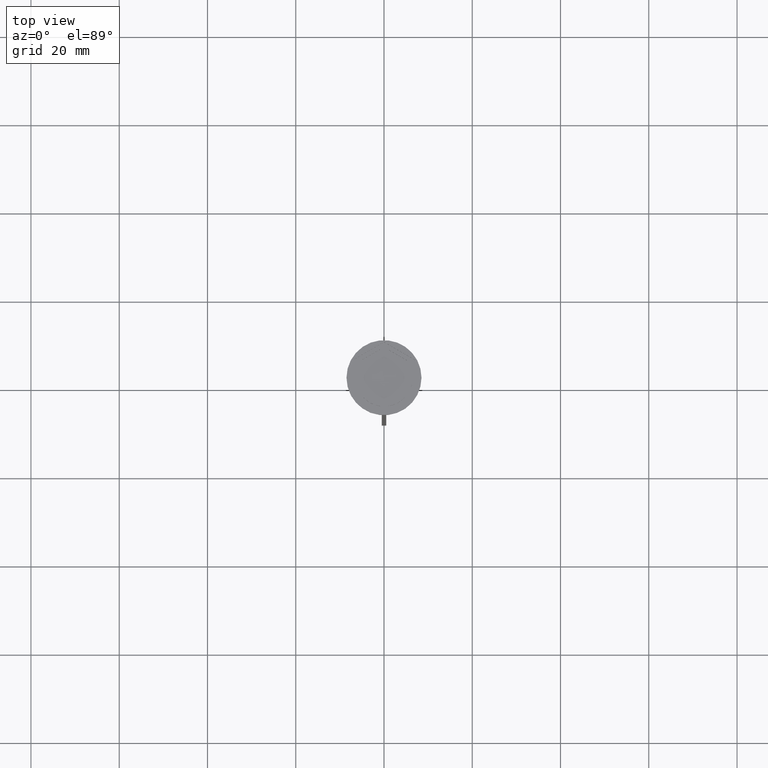
[diagram: clean part render]
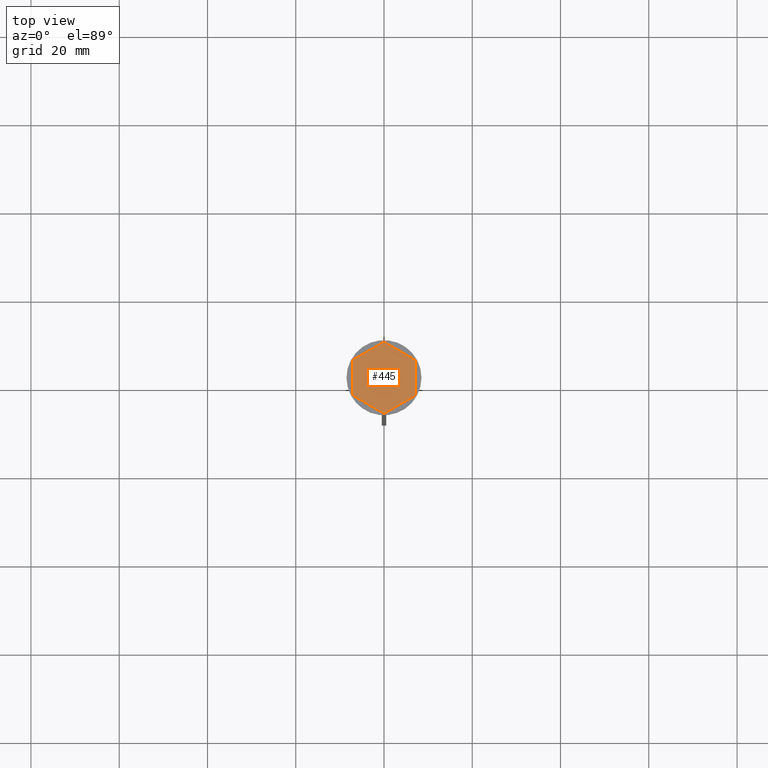
[diagram: same view with one face highlighted and labeled with its STEP entity id]
A machine part, top view. The second image highlights one B-rep face of the part: STEP entity #445.
In plain terms, the highlighted planar face has unit normal (0, 0, 1).
Its self-contained STEP definition (entity closure, byte-faithful):
#5 = AXIS2_PLACEMENT_3D ( 'NONE', #706, #1463, #525 ) ;
#50 = VECTOR ( 'NONE', #2343, 1000.000000000000000 ) ;
#61 = LINE ( 'NONE', #1774, #2305 ) ;
#69 = EDGE_CURVE ( 'NONE', #1689, #1612, #1806, .T. ) ;
#78 = CARTESIAN_POINT ( 'NONE',  ( 5.165063509461097269, -3.946152422706631580, -1.000000000000000888 ) ) ;
#102 = EDGE_CURVE ( 'NONE', #2078, #2310, #2035, .T. ) ;
#109 = LINE ( 'NONE', #1807, #2334 ) ;
#172 = VECTOR ( 'NONE', #1471, 1000.000000000000114 ) ;
#193 = EDGE_LOOP ( 'NONE', ( #1734, #1384 ) ) ;
#213 = CIRCLE ( 'NONE', #2130, 6.500000000000000888 ) ;
#215 = CARTESIAN_POINT ( 'NONE',  ( 0.000000000000000000, 0.000000000000000000, -1.000000000000000000 ) ) ;
#222 = VECTOR ( 'NONE', #2327, 1000.000000000000000 ) ;
#237 = CARTESIAN_POINT ( 'NONE',  ( 7.000000000000000000, -4.041451884327381450, -1.000000000000000000 ) ) ;
#239 = EDGE_CURVE ( 'NONE', #2222, #1227, #1159, .T. ) ;
#281 = ORIENTED_EDGE ( 'NONE', *, *, #1168, .F. ) ;
#291 = CIRCLE ( 'NONE', #766, 6.500000000000000888 ) ;
#323 = CARTESIAN_POINT ( 'NONE',  ( 0.000000000000000000, 0.000000000000000000, -1.000000000000000000 ) ) ;
#337 = VERTEX_POINT ( 'NONE', #78 ) ;
#381 = CIRCLE ( 'NONE', #2344, 6.500000000000000888 ) ;
#385 = CARTESIAN_POINT ( 'NONE',  ( 7.000000000000000888, 4.041451884327382338, -1.000000000000000000 ) ) ;
#445 = ADVANCED_FACE ( 'NONE', ( #1453, #2232, #1628, #671, #2434, #2031, #1853 ), #2244, .T. ) ;
#447 = EDGE_LOOP ( 'NONE', ( #2062, #2264 ) ) ;
#473 = ORIENTED_EDGE ( 'NONE', *, *, #1520, .F. ) ;
#506 = LINE ( 'NONE', #1256, #1403 ) ;
#525 = DIRECTION ( 'NONE',  ( 1.000000000000000000, 0.000000000000000000, -0.000000000000000000 ) ) ;
#526 = EDGE_CURVE ( 'NONE', #867, #2125, #506, .T. ) ;
#561 = LINE ( 'NONE', #1152, #2375 ) ;
#588 = EDGE_CURVE ( 'NONE', #1108, #2068, #561, .T. ) ;
#599 = DIRECTION ( 'NONE',  ( 0.000000000000000000, -1.000000000000000000, 0.000000000000000000 ) ) ;
#602 = ORIENTED_EDGE ( 'NONE', *, *, #1790, .F. ) ;
#619 = VERTEX_POINT ( 'NONE', #1713 ) ;
#653 = EDGE_LOOP ( 'NONE', ( #1965, #281 ) ) ;
#667 = ORIENTED_EDGE ( 'NONE', *, *, #69, .F. ) ;
#671 = FACE_BOUND ( 'NONE', #982, .T. ) ;
#706 = CARTESIAN_POINT ( 'NONE',  ( 0.000000000000000000, 0.000000000000000000, -1.000000000000000000 ) ) ;
#708 = CARTESIAN_POINT ( 'NONE',  ( 5.999999999999999112, -3.464101615137755719, -1.000000000000000888 ) ) ;
#714 = CARTESIAN_POINT ( 'NONE',  ( -7.000000000000000888, -4.041451884327381450, -1.000000000000000000 ) ) ;
#737 = CARTESIAN_POINT ( 'NONE',  ( 0.000000000000000000, 6.928203230275507885, -1.000000000000000888 ) ) ;
#766 = AXIS2_PLACEMENT_3D ( 'NONE', #971, #1314, #1296 ) ;
#793 = LINE ( 'NONE', #1601, #222 ) ;
#800 = ORIENTED_EDGE ( 'NONE', *, *, #102, .F. ) ;
#831 = EDGE_LOOP ( 'NONE', ( #1017, #800 ) ) ;
#842 = AXIS2_PLACEMENT_3D ( 'NONE', #323, #2052, #1870 ) ;
#854 = CARTESIAN_POINT ( 'NONE',  ( 5.999999999999999112, -2.500000000000003109, -1.000000000000000888 ) ) ;
#867 = VERTEX_POINT ( 'NONE', #1815 ) ;
#875 = DIRECTION ( 'NONE',  ( -0.8660254037844385966, -0.4999999999999999445, 0.000000000000000000 ) ) ;
#901 = LINE ( 'NONE', #714, #172 ) ;
#912 = VERTEX_POINT ( 'NONE', #2433 ) ;
#928 = CARTESIAN_POINT ( 'NONE',  ( 0.000000000000000000, 0.000000000000000000, -1.000000000000000000 ) ) ;
#932 = CARTESIAN_POINT ( 'NONE',  ( -7.000000000000000888, 4.041451884327381450, -1.000000000000000000 ) ) ;
#970 = EDGE_CURVE ( 'NONE', #1950, #337, #1688, .T. ) ;
#971 = CARTESIAN_POINT ( 'NONE',  ( 0.000000000000000000, 0.000000000000000000, -1.000000000000000000 ) ) ;
#982 = EDGE_LOOP ( 'NONE', ( #1379, #1750 ) ) ;
#1017 = ORIENTED_EDGE ( 'NONE', *, *, #1518, .F. ) ;
#1096 = VERTEX_POINT ( 'NONE', #2072 ) ;
#1107 = ORIENTED_EDGE ( 'NONE', *, *, #588, .T. ) ;
#1108 = VERTEX_POINT ( 'NONE', #1951 ) ;
#1112 = CARTESIAN_POINT ( 'NONE',  ( 7.000000000000000000, -4.041451884327381450, -1.000000000000000000 ) ) ;
#1121 = LINE ( 'NONE', #737, #1492 ) ;
#1152 = CARTESIAN_POINT ( 'NONE',  ( 2.174016704710901386E-15, -8.082903768654762899, -1.000000000000000000 ) ) ;
#1156 = EDGE_CURVE ( 'NONE', #2068, #1801, #1568, .T. ) ;
#1159 = CIRCLE ( 'NONE', #2122, 6.500000000000000888 ) ;
#1162 = AXIS2_PLACEMENT_3D ( 'NONE', #928, #1679, #2282 ) ;
#1168 = EDGE_CURVE ( 'NONE', #912, #1282, #61, .T. ) ;
#1192 = DIRECTION ( 'NONE',  ( 0.8660254037844388186, -0.4999999999999998335, 0.000000000000000000 ) ) ;
#1207 = EDGE_CURVE ( 'NONE', #337, #1950, #793, .T. ) ;
#1227 = VERTEX_POINT ( 'NONE', #1432 ) ;
#1246 = VECTOR ( 'NONE', #599, 1000.000000000000000 ) ;
#1256 = CARTESIAN_POINT ( 'NONE',  ( 0.000000000000000000, 8.082903768654762899, -1.000000000000000000 ) ) ;
#1271 = CARTESIAN_POINT ( 'NONE',  ( 0.000000000000000000, 0.000000000000000000, -1.000000000000000000 ) ) ;
#1273 = CARTESIAN_POINT ( 'NONE',  ( -6.000000000000000000, -3.464101615137754830, -1.000000000000000888 ) ) ;
#1282 = VERTEX_POINT ( 'NONE', #1825 ) ;
#1296 = DIRECTION ( 'NONE',  ( 1.000000000000000000, 0.000000000000000000, 0.000000000000000000 ) ) ;
#1313 = EDGE_CURVE ( 'NONE', #1543, #1096, #1121, .T. ) ;
#1314 = DIRECTION ( 'NONE',  ( 0.000000000000000000, 0.000000000000000000, 1.000000000000000000 ) ) ;
#1326 = VECTOR ( 'NONE', #2071, 1000.000000000000000 ) ;
#1328 = DIRECTION ( 'NONE',  ( 0.000000000000000000, 0.000000000000000000, 1.000000000000000000 ) ) ;
#1331 = CARTESIAN_POINT ( 'NONE',  ( -6.000000000000000000, 2.500000000000001776, -1.000000000000000888 ) ) ;
#1334 = DIRECTION ( 'NONE',  ( 0.000000000000000000, 0.000000000000000000, 1.000000000000000000 ) ) ;
#1351 = EDGE_LOOP ( 'NONE', ( #473, #602, #667 ) ) ;
#1379 = ORIENTED_EDGE ( 'NONE', *, *, #239, .F. ) ;
#1384 = ORIENTED_EDGE ( 'NONE', *, *, #1207, .F. ) ;
#1403 = VECTOR ( 'NONE', #875, 1000.000000000000114 ) ;
#1432 = CARTESIAN_POINT ( 'NONE',  ( -0.8349364905389056180, -6.446152422706632024, -1.000000000000000888 ) ) ;
#1453 = FACE_BOUND ( 'NONE', #653, .T. ) ;
#1463 = DIRECTION ( 'NONE',  ( 0.000000000000000000, 0.000000000000000000, 1.000000000000000000 ) ) ;
#1471 = DIRECTION ( 'NONE',  ( 0.8660254037844387076, -0.4999999999999997224, 0.000000000000000000 ) ) ;
#1474 = LINE ( 'NONE', #1657, #2300 ) ;
#1481 = CARTESIAN_POINT ( 'NONE',  ( -5.165063509461101710, 3.946152422706626250, -1.000000000000000888 ) ) ;
#1492 = VECTOR ( 'NONE', #1512, 1000.000000000000000 ) ;
#1499 = CARTESIAN_POINT ( 'NONE',  ( -6.500000000000000888, 0.000000000000000000, -1.000000000000000000 ) ) ;
#1506 = DIRECTION ( 'NONE',  ( 1.000000000000000000, 0.000000000000000000, 0.000000000000000000 ) ) ;
#1512 = DIRECTION ( 'NONE',  ( 0.8660254037844385966, 0.5000000000000001110, -0.000000000000000000 ) ) ;
#1518 = EDGE_CURVE ( 'NONE', #2310, #2078, #381, .T. ) ;
#1520 = EDGE_CURVE ( 'NONE', #2076, #1689, #291, .T. ) ;
#1543 = VERTEX_POINT ( 'NONE', #1481 ) ;
#1568 = LINE ( 'NONE', #237, #50 ) ;
#1601 = CARTESIAN_POINT ( 'NONE',  ( -1.301042606982605321E-15, -6.928203230275509661, -1.000000000000000888 ) ) ;
#1612 = VERTEX_POINT ( 'NONE', #2370 ) ;
#1628 = FACE_BOUND ( 'NONE', #193, .T. ) ;
#1657 = CARTESIAN_POINT ( 'NONE',  ( 7.000000000000000888, 4.041451884327382338, -1.000000000000000000 ) ) ;
#1679 = DIRECTION ( 'NONE',  ( 0.000000000000000000, 0.000000000000000000, 1.000000000000000000 ) ) ;
#1688 = CIRCLE ( 'NONE', #1940, 6.500000000000000888 ) ;
#1689 = VERTEX_POINT ( 'NONE', #1499 ) ;
#1707 = ORIENTED_EDGE ( 'NONE', *, *, #526, .T. ) ;
#1713 = CARTESIAN_POINT ( 'NONE',  ( -7.000000000000000888, -4.041451884327381450, -1.000000000000000000 ) ) ;
#1714 = DIRECTION ( 'NONE',  ( 1.000000000000000000, 0.000000000000000000, 0.000000000000000000 ) ) ;
#1717 = EDGE_CURVE ( 'NONE', #2125, #619, #2074, .T. ) ;
#1734 = ORIENTED_EDGE ( 'NONE', *, *, #970, .F. ) ;
#1750 = ORIENTED_EDGE ( 'NONE', *, *, #2384, .F. ) ;
#1768 = VECTOR ( 'NONE', #1858, 1000.000000000000000 ) ;
#1774 = CARTESIAN_POINT ( 'NONE',  ( 6.000000000000000888, 3.464101615137753942, -1.000000000000000888 ) ) ;
#1790 = EDGE_CURVE ( 'NONE', #1612, #2076, #109, .T. ) ;
#1801 = VERTEX_POINT ( 'NONE', #385 ) ;
#1806 = CIRCLE ( 'NONE', #842, 6.500000000000000888 ) ;
#1807 = CARTESIAN_POINT ( 'NONE',  ( -6.000000000000000000, 3.464101615137752166, -1.000000000000000888 ) ) ;
#1815 = CARTESIAN_POINT ( 'NONE',  ( 0.000000000000000000, 8.082903768654762899, -1.000000000000000000 ) ) ;
#1821 = ORIENTED_EDGE ( 'NONE', *, *, #1717, .T. ) ;
#1825 = CARTESIAN_POINT ( 'NONE',  ( 5.165063509461097269, 3.946152422706633356, -1.000000000000000888 ) ) ;
#1853 = FACE_OUTER_BOUND ( 'NONE', #1955, .T. ) ;
#1858 = DIRECTION ( 'NONE',  ( -2.503857664561932376E-16, -1.000000000000000000, 0.000000000000000000 ) ) ;
#1870 = DIRECTION ( 'NONE',  ( 1.000000000000000000, 0.000000000000000000, 0.000000000000000000 ) ) ;
#1911 = CARTESIAN_POINT ( 'NONE',  ( 0.000000000000000000, 0.000000000000000000, -1.000000000000000000 ) ) ;
#1940 = AXIS2_PLACEMENT_3D ( 'NONE', #2476, #1328, #1506 ) ;
#1947 = DIRECTION ( 'NONE',  ( 0.000000000000000000, 0.000000000000000000, 1.000000000000000000 ) ) ;
#1950 = VERTEX_POINT ( 'NONE', #2139 ) ;
#1951 = CARTESIAN_POINT ( 'NONE',  ( 2.174016704710901386E-15, -8.082903768654762899, -1.000000000000000000 ) ) ;
#1955 = EDGE_LOOP ( 'NONE', ( #2191, #1707, #1821, #1990, #1107, #2064 ) ) ;
#1961 = EDGE_CURVE ( 'NONE', #619, #1108, #901, .T. ) ;
#1965 = ORIENTED_EDGE ( 'NONE', *, *, #2157, .F. ) ;
#1990 = ORIENTED_EDGE ( 'NONE', *, *, #1961, .T. ) ;
#2031 = FACE_BOUND ( 'NONE', #447, .T. ) ;
#2035 = LINE ( 'NONE', #708, #1768 ) ;
#2039 = EDGE_CURVE ( 'NONE', #1801, #867, #1474, .T. ) ;
#2040 = DIRECTION ( 'NONE',  ( 0.000000000000000000, 0.000000000000000000, 1.000000000000000000 ) ) ;
#2050 = EDGE_CURVE ( 'NONE', #1096, #1543, #2337, .T. ) ;
#2052 = DIRECTION ( 'NONE',  ( 0.000000000000000000, 0.000000000000000000, 1.000000000000000000 ) ) ;
#2062 = ORIENTED_EDGE ( 'NONE', *, *, #2050, .F. ) ;
#2064 = ORIENTED_EDGE ( 'NONE', *, *, #1156, .T. ) ;
#2068 = VERTEX_POINT ( 'NONE', #1112 ) ;
#2069 = DIRECTION ( 'NONE',  ( 1.000000000000000000, 0.000000000000000000, 0.000000000000000000 ) ) ;
#2071 = DIRECTION ( 'NONE',  ( -0.8660254037844385966, 0.5000000000000001110, 0.000000000000000000 ) ) ;
#2072 = CARTESIAN_POINT ( 'NONE',  ( -0.8349364905388981795, 6.446152422706633800, -1.000000000000000888 ) ) ;
#2074 = LINE ( 'NONE', #932, #1246 ) ;
#2076 = VERTEX_POINT ( 'NONE', #1331 ) ;
#2078 = VERTEX_POINT ( 'NONE', #2100 ) ;
#2100 = CARTESIAN_POINT ( 'NONE',  ( 6.000000000000000888, 2.500000000000000444, -1.000000000000000888 ) ) ;
#2122 = AXIS2_PLACEMENT_3D ( 'NONE', #1911, #1947, #2313 ) ;
#2125 = VERTEX_POINT ( 'NONE', #2278 ) ;
#2130 = AXIS2_PLACEMENT_3D ( 'NONE', #1271, #2040, #2069 ) ;
#2139 = CARTESIAN_POINT ( 'NONE',  ( 0.8349364905389008440, -6.446152422706633800, -1.000000000000000888 ) ) ;
#2157 = EDGE_CURVE ( 'NONE', #1282, #912, #213, .T. ) ;
#2191 = ORIENTED_EDGE ( 'NONE', *, *, #2039, .T. ) ;
#2222 = VERTEX_POINT ( 'NONE', #2382 ) ;
#2232 = FACE_BOUND ( 'NONE', #831, .T. ) ;
#2244 = PLANE ( 'NONE',  #5 ) ;
#2264 = ORIENTED_EDGE ( 'NONE', *, *, #1313, .F. ) ;
#2278 = CARTESIAN_POINT ( 'NONE',  ( -7.000000000000000888, 4.041451884327381450, -1.000000000000000000 ) ) ;
#2282 = DIRECTION ( 'NONE',  ( 1.000000000000000000, 0.000000000000000000, 0.000000000000000000 ) ) ;
#2283 = DIRECTION ( 'NONE',  ( 0.8660254037844384856, 0.5000000000000001110, 0.000000000000000000 ) ) ;
#2300 = VECTOR ( 'NONE', #2458, 1000.000000000000114 ) ;
#2305 = VECTOR ( 'NONE', #1192, 999.9999999999998863 ) ;
#2310 = VERTEX_POINT ( 'NONE', #854 ) ;
#2313 = DIRECTION ( 'NONE',  ( 1.000000000000000000, 0.000000000000000000, 0.000000000000000000 ) ) ;
#2327 = DIRECTION ( 'NONE',  ( -0.8660254037844387076, -0.4999999999999998890, 0.000000000000000000 ) ) ;
#2334 = VECTOR ( 'NONE', #2412, 1000.000000000000000 ) ;
#2337 = CIRCLE ( 'NONE', #1162, 6.500000000000000888 ) ;
#2343 = DIRECTION ( 'NONE',  ( 1.073081856240827703E-16, 1.000000000000000000, 0.000000000000000000 ) ) ;
#2344 = AXIS2_PLACEMENT_3D ( 'NONE', #215, #1334, #1714 ) ;
#2370 = CARTESIAN_POINT ( 'NONE',  ( -6.000000000000000000, -2.500000000000001776, -1.000000000000000888 ) ) ;
#2375 = VECTOR ( 'NONE', #2283, 1000.000000000000227 ) ;
#2382 = CARTESIAN_POINT ( 'NONE',  ( -5.165063509461097269, -3.946152422706633356, -1.000000000000000888 ) ) ;
#2384 = EDGE_CURVE ( 'NONE', #1227, #2222, #2442, .T. ) ;
#2412 = DIRECTION ( 'NONE',  ( 0.000000000000000000, 1.000000000000000000, 0.000000000000000000 ) ) ;
#2433 = CARTESIAN_POINT ( 'NONE',  ( 0.8349364905389003999, 6.446152422706633800, -1.000000000000000888 ) ) ;
#2434 = FACE_BOUND ( 'NONE', #1351, .T. ) ;
#2442 = LINE ( 'NONE', #1273, #1326 ) ;
#2458 = DIRECTION ( 'NONE',  ( -0.8660254037844387076, 0.4999999999999998890, 0.000000000000000000 ) ) ;
#2476 = CARTESIAN_POINT ( 'NONE',  ( 0.000000000000000000, 0.000000000000000000, -1.000000000000000000 ) ) ;